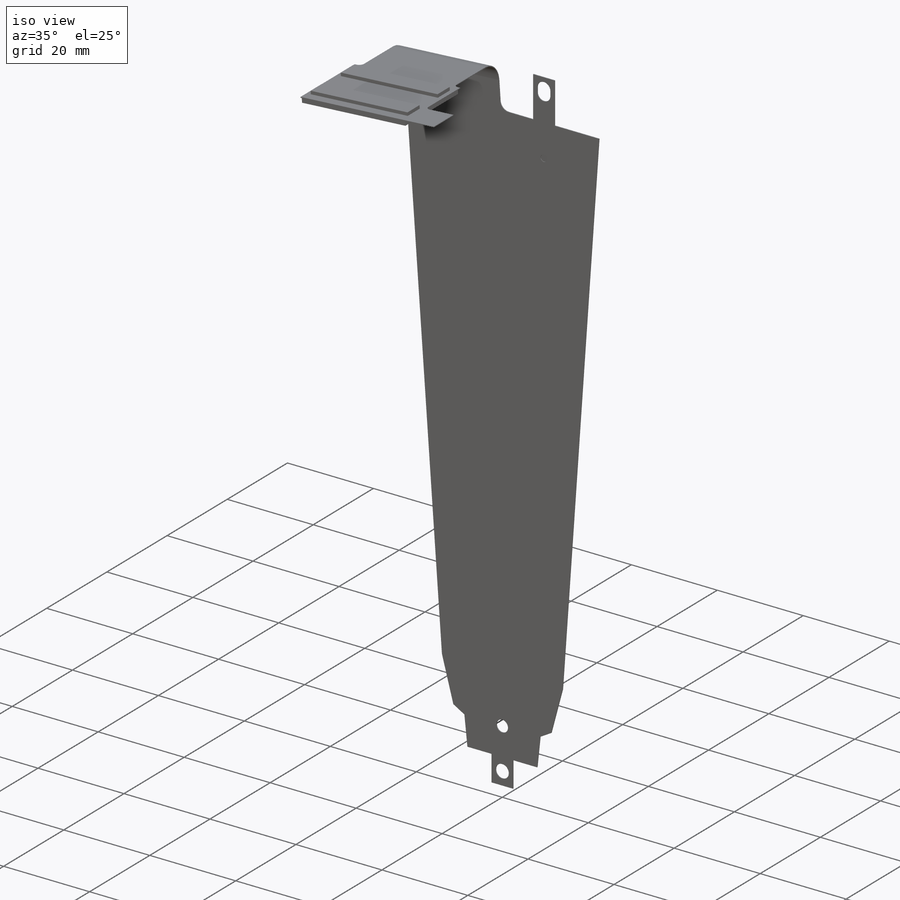
[diagram: iso view]
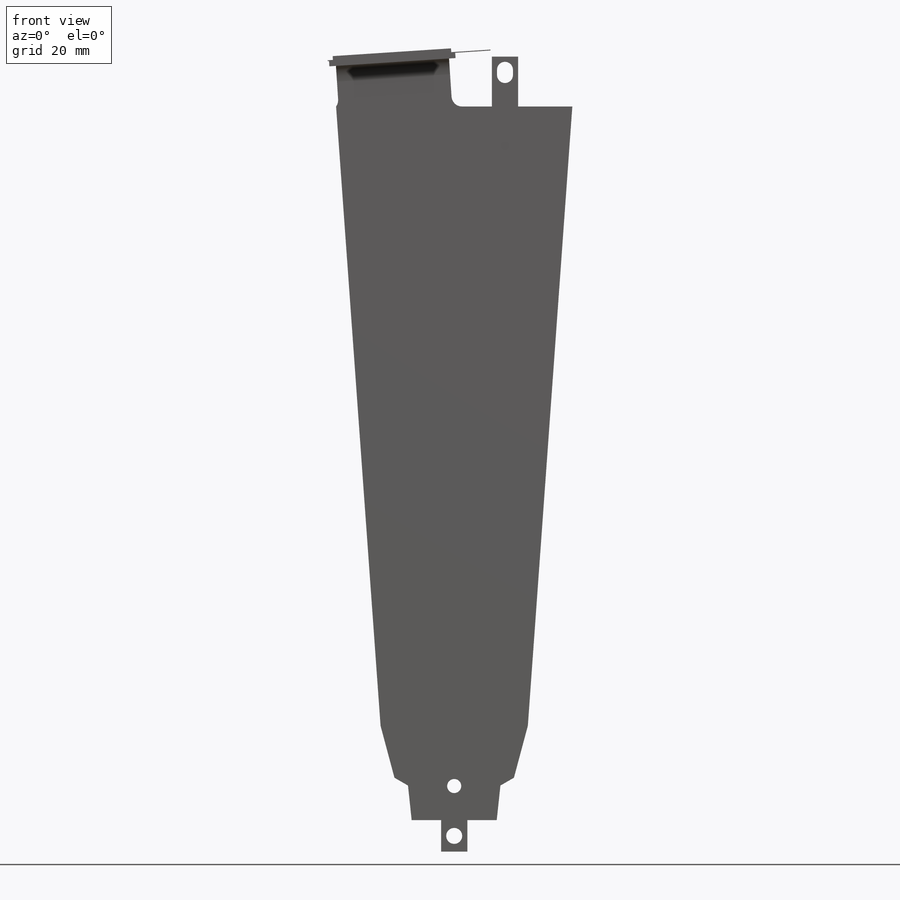
[diagram: front view]
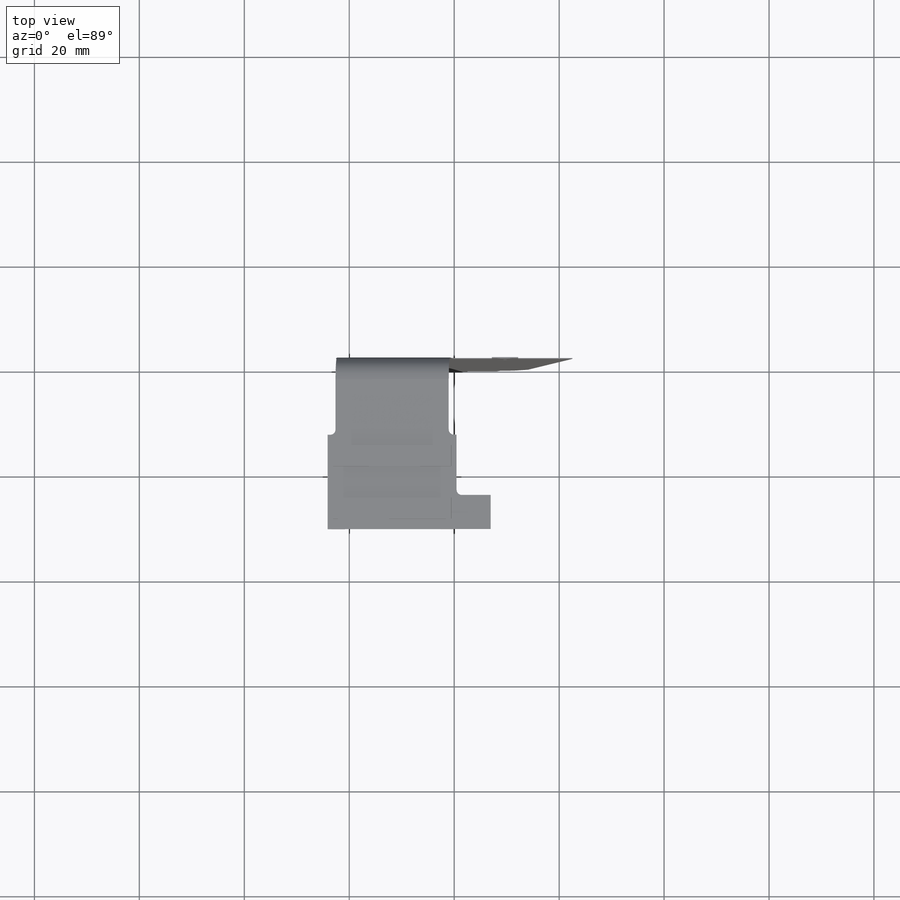
[diagram: top view]
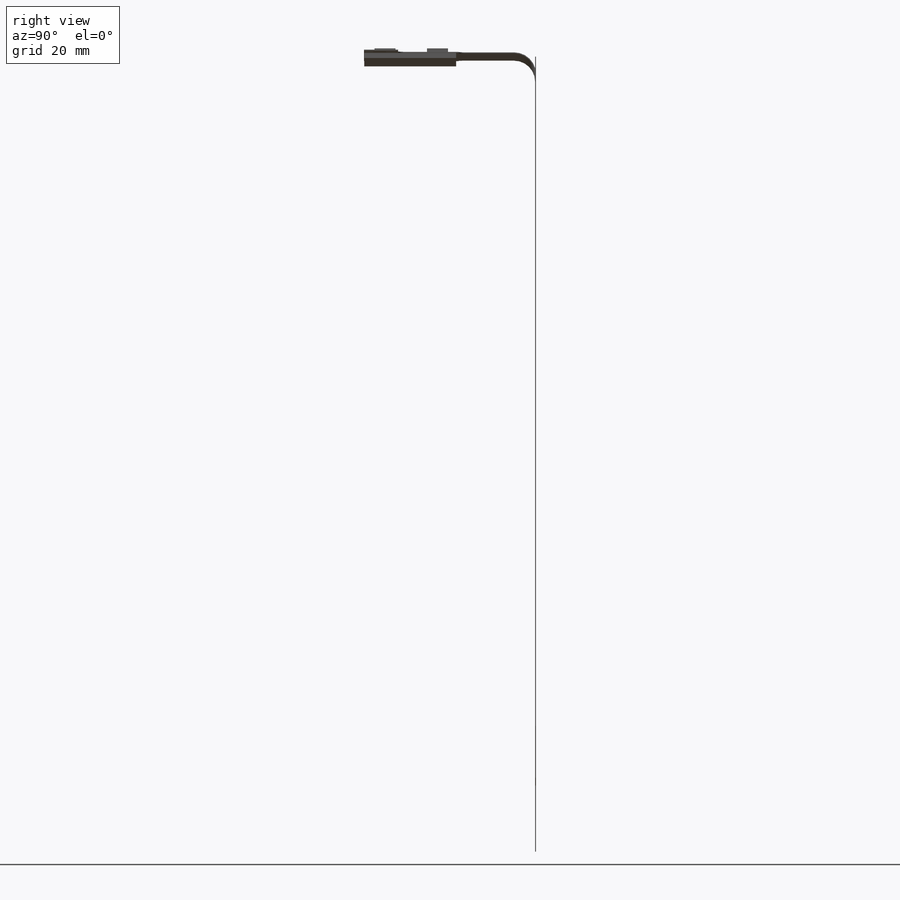
[diagram: right view]
SOLIDWORKS PART (.sldprt)
format: sldprt  version: not decoded by parser v0  size: 3,507,712 bytes
history: native  units: mm
features: sketch x21, extrude x11, cut_extrude x5, plane x4, sheet_metal_op x2, fillet x2, material x1 + 2 further entries (+13 scaffold rows collapsed; 1 parser-record rows omitted)
feature tree (62):
  scaffold x13  (default folders/planes/origin — collapsed)
  material  "Material <not specified>"
  plane  "Plane1"
  plane  "Plane2"
  plane  "Plane3"
  sketch  "Sketch1"  dims[c1.D6=2.0mm c1.D13=1.0mm c1.D1=6.6mm c1.D2=24.2mm c1.D3=134.0mm c1.D4=0.5mm c1.D5=0.5mm c2.D6=0.5mm c2.D7=70.0mm c2.D5=0.5mm c2.D8=3.0mm c2.D1=4.5mm c2.D2=3.0mm c2.D3=~68.346004mm c3.D1=~68.346004mm c4.D1=11.25deg c4.D4=~34.742929mm c4.D3=170.0mm c5.D4=135.0mm c5.D1=135.0mm c6.D1=15.0deg c6.D2=135.0mm c6.D3=170.0mm c7.D1=110.0mm c8.D1=15.0deg c8.D4=110.0mm c9.D4=3.75deg c9.D5=4.0mm c9.D2=~135.289666mm c9.D3=~170.673817mm c9.D6=170.0mm c9.D1=35.0mm c10.D2=~115.605331mm c11.D2=15.0deg c11.D3=170.0mm c11.D4=5.0mm c12.D3=171.0mm c12.D4=23.0mm c12.D5=~6.03777mm c13.D4=21.6mm c13.D7=~134.546711mm c14.D7=3.75deg c14.D8=~134.546711mm c15.D8=7.5deg c15.D9=2.0mm c15.D10=3.5mm c16.D9=6.0mm c16.D11=3.5mm c16.D12=~12.680345mm c16.D14=2.5mm c16.D15=0.635mm c16.D16=3.175mm]
  extrude  "Extrude1"  Depth=0.44mm Thickness=0.44mm
  sketch  "Sketch25"  dims[D1=1.5mm D2=~9.680345mm D3=7.5mm]
  cut_extrude  "Extrude10"  Depth=0.088mm
  sketch  "Sketch26"  dims[c1.D2=3.0508mm c1.D3=~0.396875mm c1.D1=5.0mm c2.D3=1.0mm c2.D4=6.0mm c2.D5=6.0mm c2.D6=5.0mm c3.D4=9.5mm c3.D7=~9.680345mm c3.D8=3.0mm]
  extrude  "Extrude11"  [1 undecoded]
  sheet_metal_op  "Sheet-Metal2"
  sketch  "Sharp-Sketch2"  dims[D1=0.0mm]
  sketch  "Flat-Sketch2"  dims[D1=0.0mm]
  sketch  "Sketch11"  dims[c1.D1=4.0mm c1.D2=500.0mm c1.D3=0.0mm c1.D4=90.0deg c1.D5=1.0 c1.D8=0.0635mm c1.D9=0.0635mm c2.D1=4.0mm c2.D2=500.0mm c2.D3=0.0mm c2.D6=10.0mm c2.D7=~32.795125mm]
  sketch  "Sketch13"  dims[c1.D1=2.6924mm c1.D2=3.556mm c1.D3=3.556mm c1.D4=~0.79375mm c1.D5=1.5875mm c1.D6=2.6924mm c1.D7=2.6924mm c1.D8=2.6924mm c1.D9=2.6924mm c1.D10=2.6924mm c2.D6=2.6924mm c2.D7=1.5875mm c2.D8=2.6924mm c2.D9=~165.073514mm c3.D8=2.6924mm c3.D6=2.6924mm c4.D8=1.5875mm c4.D9=2.6924mm c4.D5=1.5875mm c4.D7=~1.59258mm c4.D10=2.6924mm c4.D14=2.6924mm c4.D3=6.5mm c5.D5=4.0mm c5.D6=3.5mm c5.D7=132.0mm c5.D8=~40.200723mm c5.D9=2.0mm c5.D10=3.0mm c6.D6=13.0mm c6.D7=1.5mm c6.D8=~4.376152mm c7.D6=~165.307588mm c7.D8=~157.767264mm c7.D7=1.5mm c7.D9=0.25mm c7.D5=37.5mm c8.D7=18.0mm c8.D9=18.0mm c8.D6=165.0mm c8.D8=156.5mm c9.D6=~170.227382mm c9.D8=~157.767264mm c9.D7=17.5mm c9.D10=~4.305579mm c9.D11=~3.488371mm c9.D12=~1.726962mm c9.D13=~14.206316mm c9.D14=18.0mm c10.D6=161.0mm]
  cut_extrude  "Cut-Extrude1"  [1 undecoded]
  sketch  "Sketch19"  dims[D1=1.5mm D2=18.0mm]
  extrude  "Extrude4"  [1 undecoded]
  sketch  "Sketch29"  dims[D1=6.5mm D2=6.5mm]
  extrude  "Extrude16"  [1 undecoded]
  sketch  "Sketch31"  dims[D1=1.5mm D2=1.0mm D3=1.0mm D4=1.0mm D5=3.1mm D6=3.1mm D7=3.0mm D8=2.8mm D9=1.2mm D10=~1.262945mm]
  cut_extrude  "Extrude18"  Depth=0.005mm
  fillet  "Fillet1"  Radius=1mm
  sketch  "Sketch12"  dims[c1.D1=19.6mm c1.D2=4.0mm c1.D3=2.0mm c1.D4=6.0mm c2.D1=22.6mm]
  extrude  "Extrude2"  Depth=0.725mm
  sketch  "Sketch24"  dims[c1.D3=27.5mm c1.D1=0.25mm c1.D2=0.25mm c2.D1=0.25mm]
  extrude  "Extrude9"  Depth=1mm
  sheet_metal_op  "Edge-Flange2"
  sketch  "Sketch17"  dims[c1.EdgeBend2=0.0 c1.D1=4.0mm c1.D4=90.0deg c1.D5=2.0 c1.D8=0.088mm c1.D9=0.088mm c2.D1=4.0mm c2.D2=500.0mm c2.D3=0.0mm c2.D6=10.0mm c2.D7=~35.73211mm]
  sketch  "Sketch20"  dims[D1=1.5mm D2=20.0mm]
  extrude  "Extrude5"  [1 undecoded]
  sketch  "Sketch30"  dims[D1=6.5mm]
  extrude  "Extrude17"  [1 undecoded]
  sketch  "Sketch32"  dims[D1=1.5mm D2=1.0mm D3=1.0mm D4=1.0mm D5=3.1mm D6=3.1mm D7=3.0mm D8=2.8mm D9=1.2mm D10=~1.262945mm]
  cut_extrude  "Extrude19"  Depth=0.005mm
  fillet  "Fillet2"  Radius=1mm
  sketch  "Sketch18"  dims[c1.D1=2.0mm c1.D2=1.0mm c1.D3=4.0mm c1.D4=10.0mm c2.D2=22.6mm]
  extrude  "Extrude3"  Depth=0.725mm
  sketch  "Sketch22"  dims[c1.D3=27.5mm c1.D1=0.25mm c1.D2=0.25mm c2.D1=0.25mm]
  extrude  "Extrude7"  Depth=1mm
  "Flat-Pattern2"
  sketch  "Bend-Lines2"
  "Flatten-<EdgeBend2>1"
  parser-record x1  (decoder bookkeeping rows leaked as tree rows — omitted from the tree; the rows remain in map.json)
  plane  "Plane4"
  sketch  "Sketch27"  dims[c1.D1=18.0mm c1.D2=4.0mm c1.D3=~13.067074mm c2.D3=135.0deg c2.D1=18.5mm c2.D4=~17.975782mm c3.D4=15.0deg]
  extrude  "Extrude14"  [1 undecoded]
  sketch  "Sketch28"  dims[c1.D5=~1.436839mm c1.D1=~9.353117mm c2.D1=~12.092134deg c2.D2=~44.561796mm c2.D3=~3.229742mm c3.D3=75.0deg c3.D4=3.0mm c3.D5=0.26mm c3.D6=~16.215675mm c4.D5=~8.217519mm c4.D2=~4.376256mm c4.D3=~44.562066mm c4.D4=~2.104202mm c5.D5=~2.965457mm c6.D5=~179.724744deg c7.D5=0.26mm]
  cut_extrude  "Extrude15"  [1 undecoded]
decode coverage: 30 of 41 modeling features carry decoded parameters; 2 rows unclassified (native names shown)
note: ~ marks probable driven/reference dimensions
note: 8 parameter values undecoded
summary: no parameter record found for 8 features
note: suppression state not decoded; provenance and decode notes live in map.json
